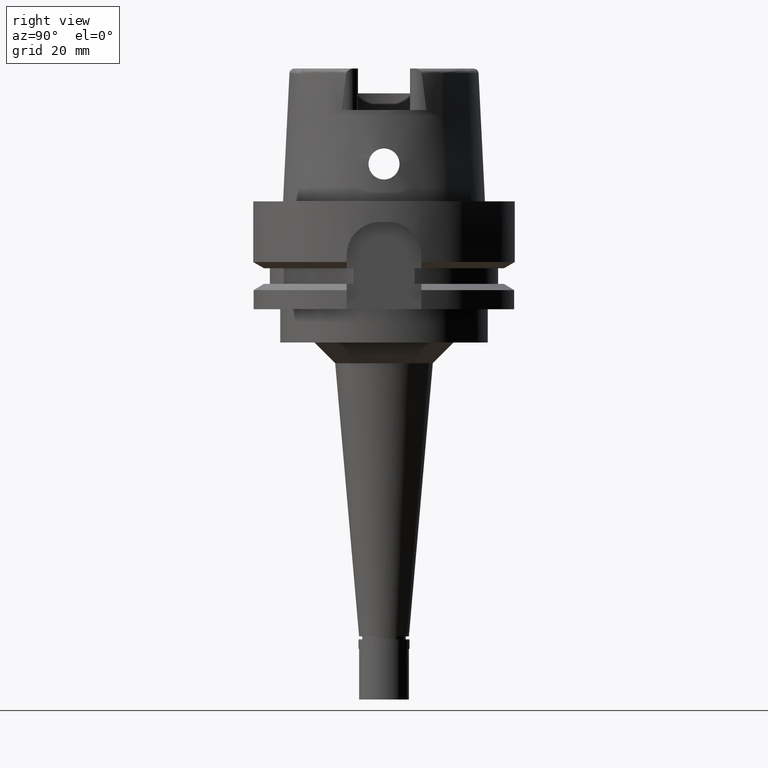
[diagram: clean part render]
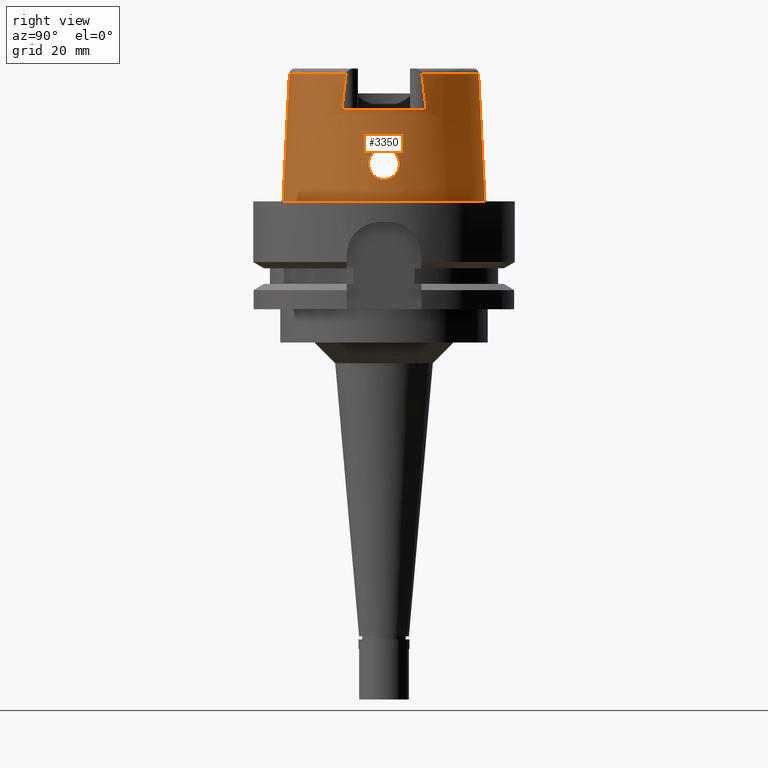
[diagram: same view with one face highlighted and labeled with its STEP entity id]
A machine part, right view. The second image highlights one B-rep face of the part: STEP entity #3350.
In plain terms, the highlighted conical surface has half-angle 2.862 deg.
Its self-contained STEP definition (entity closure, byte-faithful):
#6 = VERTEX_POINT ( 'NONE', #3662 ) ;
#54 = CARTESIAN_POINT ( 'NONE',  ( 23.64567500269144418, 1.498947058962771139, 12.43753603522380047 ) ) ;
#60 = CARTESIAN_POINT ( 'NONE',  ( 0.0000000000000000000, 24.31503482328999866, 1.136868377215999875E-13 ) ) ;
#62 = ORIENTED_EDGE ( 'NONE', *, *, #1748, .F. ) ;
#81 = CARTESIAN_POINT ( 'NONE',  ( 23.67751368057999883, 0.0000000000000000000, 12.75000000000000000 ) ) ;
#88 = VERTEX_POINT ( 'NONE', #1634 ) ;
#112 = CARTESIAN_POINT ( 'NONE',  ( 23.53962612747333338, 3.467840662365440974, 10.42710194387783851 ) ) ;
#119 = CARTESIAN_POINT ( 'NONE',  ( 24.05252611746999847, 0.0000000000000000000, 5.250000000000000000 ) ) ;
#132 = CARTESIAN_POINT ( 'NONE',  ( 0.0000000000000000000, 1.413609354011999823E-14, 1.136868377215999875E-13 ) ) ;
#188 = CARTESIAN_POINT ( 'NONE',  ( 20.87000233117000292, 9.149994763924999219, 30.54552228658999979 ) ) ;
#189 = DIRECTION ( 'NONE',  ( 0.0000000000000000000, 0.0000000000000000000, 1.000000000000000000 ) ) ;
#244 = CARTESIAN_POINT ( 'NONE',  ( 23.75052776344794481, -3.189267839768944235, 7.026897352602421876 ) ) ;
#265 = CARTESIAN_POINT ( 'NONE',  ( 23.54997882773250240, -3.214048249143627078, 10.93583124113238014 ) ) ;
#288 = CARTESIAN_POINT ( 'NONE',  ( 23.94319600311800045, 1.974359340176952804, 5.811551314754698438 ) ) ;
#292 = CARTESIAN_POINT ( 'NONE',  ( 23.54898609649416841, -3.721192827334553144, 9.479207225134395287 ) ) ;
#316 = CARTESIAN_POINT ( 'NONE',  ( 24.01740961600312119, 1.127694088132078276, 5.423037310358941099 ) ) ;
#318 = CARTESIAN_POINT ( 'NONE',  ( 0.0000000000000000000, 1.413609354011999823E-14, 15.42996356139999925 ) ) ;
#319 = EDGE_LOOP ( 'NONE', ( #531, #411 ) ) ;
#320 = CARTESIAN_POINT ( 'NONE',  ( 23.76357125701472484, -3.127457292970898806, 6.930804438420294034 ) ) ;
#338 = CARTESIAN_POINT ( 'NONE',  ( 23.78133957616316962, 3.041198773303932512, 6.805139776505233939 ) ) ;
#342 = CARTESIAN_POINT ( 'NONE',  ( 23.57970016661533563, -3.750167213228773999, 8.779389093526935639 ) ) ;
#359 = CARTESIAN_POINT ( 'NONE',  ( 24.02794456644319254, 0.9491204189224311527, 5.369973197295440315 ) ) ;
#364 = CARTESIAN_POINT ( 'NONE',  ( 23.99508534021521911, -1.438444103697369858, 5.536845054385347353 ) ) ;
#380 = VECTOR ( 'NONE', #3071, 1000.000000000000227 ) ;
#389 = CARTESIAN_POINT ( 'NONE',  ( 23.73891627175171237, 3.241955121112140237, 7.111211800008759631 ) ) ;
#411 = ORIENTED_EDGE ( 'NONE', *, *, #4516, .F. ) ;
#419 = CARTESIAN_POINT ( 'NONE',  ( 23.54158988541649578, 3.389280634928852898, 10.61710425742430353 ) ) ;
#445 = CARTESIAN_POINT ( 'NONE',  ( 20.86974092012000170, 9.111384045666000020, 30.85992712280000205 ) ) ;
#469 = CARTESIAN_POINT ( 'NONE',  ( 23.57804046785176411, 2.745080040117716003, 11.55523828441466883 ) ) ;
#481 = CARTESIAN_POINT ( 'NONE',  ( 0.0000000000000000000, 22.77198729362000051, 30.85992712280000205 ) ) ;
#496 = CARTESIAN_POINT ( 'NONE',  ( 23.56893699744993498, 2.893639315387463551, 11.38616883025181359 ) ) ;
#505 = CARTESIAN_POINT ( 'NONE',  ( 23.64938639538356213, -1.406670857329192614, 12.47618256464621211 ) ) ;
#522 = CARTESIAN_POINT ( 'NONE',  ( 23.64326211258021360, 1.556598319139703257, 12.41181739720735777 ) ) ;
#531 = ORIENTED_EDGE ( 'NONE', *, *, #5413, .F. ) ;
#609 = VERTEX_POINT ( 'NONE', #4720 ) ;
#618 = CARTESIAN_POINT ( 'NONE',  ( 23.61880211723930145, -2.057621583972756962, 12.13508742681746710 ) ) ;
#648 = CARTESIAN_POINT ( 'NONE',  ( 23.55873834156402324, -3.744918974504029663, 9.210443999823528571 ) ) ;
#675 = CARTESIAN_POINT ( 'NONE',  ( 23.77860802482195979, -3.054942586762835699, 6.821691024075148491 ) ) ;
#697 = CARTESIAN_POINT ( 'NONE',  ( 23.98791552650816072, 1.528516871944484379, 5.573757345069733304 ) ) ;
#702 = CARTESIAN_POINT ( 'NONE',  ( 23.83743926725469464, -2.730987464993206881, 6.429811187070401779 ) ) ;
#725 = CARTESIAN_POINT ( 'NONE',  ( 24.04784391727441317, 0.4712504390398025711, 5.271783121157651131 ) ) ;
#729 = CARTESIAN_POINT ( 'NONE',  ( 23.53850413980849510, -3.633745137339567055, 9.958042845446007263 ) ) ;
#736 = EDGE_CURVE ( 'NONE', #1491, #2393, #1343, .T. ) ;
#752 = CARTESIAN_POINT ( 'NONE',  ( 23.80284695264058570, 2.929284114081540658, 6.657865085349610190 ) ) ;
#755 = CARTESIAN_POINT ( 'NONE',  ( 23.56547889440391685, -3.749604970421091643, 9.061990940598704469 ) ) ;
#758 = CARTESIAN_POINT ( 'NONE',  ( 0.0000000000000000000, 1.601838013285000038E-14, 30.85992712280000205 ) ) ;
#798 = CARTESIAN_POINT ( 'NONE',  ( 23.82422928640364646, 2.811416364551748703, 6.515318221004939403 ) ) ;
#823 = CARTESIAN_POINT ( 'NONE',  ( 20.86997558643017925, -9.487356812470046918, 27.83696496336519743 ) ) ;
#826 = CARTESIAN_POINT ( 'NONE',  ( 23.58882186841112727, 2.571336324442899279, 11.73236196386616292 ) ) ;
#858 = ORIENTED_EDGE ( 'NONE', *, *, #1508, .T. ) ;
#878 = CARTESIAN_POINT ( 'NONE',  ( 23.56144695763741481, 3.018197104163452771, 11.22952616860727026 ) ) ;
#907 = CARTESIAN_POINT ( 'NONE',  ( 23.64681670382447720, 1.471097011011014200, 12.44956149159307301 ) ) ;
#938 = CARTESIAN_POINT ( 'NONE',  ( 23.57585223642896821, 2.780598448592503935, 11.51634269324825510 ) ) ;
#941 = VERTEX_POINT ( 'NONE', #481 ) ;
#958 = CARTESIAN_POINT ( 'NONE',  ( 0.0000000000000000000, -22.77198729362000051, 30.85992712280000205 ) ) ;
#975 = CARTESIAN_POINT ( 'NONE',  ( 23.61157229071850594, -2.189777435665937411, 12.04672538925431091 ) ) ;
#1029 = CARTESIAN_POINT ( 'NONE',  ( 23.62276442012662159, -1.983610039961811067, 12.18275253966955596 ) ) ;
#1054 = CARTESIAN_POINT ( 'NONE',  ( 23.66082615674083556, -3.550079782895392722, 7.788868640141958899 ) ) ;
#1079 = CARTESIAN_POINT ( 'NONE',  ( 23.72659428255796499, -3.296582431071233277, 7.211476263746603443 ) ) ;
#1110 = CARTESIAN_POINT ( 'NONE',  ( 23.95873977404055566, -1.834440503101688602, 5.727299206591295544 ) ) ;
#1132 = CARTESIAN_POINT ( 'NONE',  ( 23.85331738854202754, 2.635118638177096795, 6.331909079644085558 ) ) ;
#1135 = CARTESIAN_POINT ( 'NONE',  ( 23.54067277664325175, -3.430147532447221703, 10.51587876541495170 ) ) ;
#1160 = CARTESIAN_POINT ( 'NONE',  ( 23.59495360777070516, -3.730342472884593974, 8.545369195445857713 ) ) ;
#1186 = CARTESIAN_POINT ( 'NONE',  ( 23.85940475644863668, 2.596769276312734132, 6.294483693599585372 ) ) ;
#1232 = CARTESIAN_POINT ( 'NONE',  ( 23.53882844833148980, 3.506273564601664727, 10.33051665703981392 ) ) ;
#1252 = AXIS2_PLACEMENT_3D ( 'NONE', #5370, #3716, #3610 ) ;
#1260 = CARTESIAN_POINT ( 'NONE',  ( 23.63959946750538421, 1.642236859733247067, 12.37230435666469930 ) ) ;
#1291 = CARTESIAN_POINT ( 'NONE',  ( 23.99468419115157403, -1.443395455895592594, 5.538908498786254242 ) ) ;
#1293 = ORIENTED_EDGE ( 'NONE', *, *, #4236, .T. ) ;
#1314 = CARTESIAN_POINT ( 'NONE',  ( 23.53953853704155463, 3.471461167429688022, 10.41828044390232044 ) ) ;
#1316 = ORIENTED_EDGE ( 'NONE', *, *, #4480, .F. ) ;
#1341 = CARTESIAN_POINT ( 'NONE',  ( 20.86999179056999765, -9.150018439712999552, 30.54599490601000156 ) ) ;
#1343 = B_SPLINE_CURVE_WITH_KNOTS ( 'NONE', 3,
 ( #188, #4806, #4835, #1456 ),
 .UNSPECIFIED., .F., .F.,
 ( 4, 4 ),
 ( 0.0000000000000000000, 1.000000000000000000 ),
 .UNSPECIFIED. ) ;
#1345 = CARTESIAN_POINT ( 'NONE',  ( 23.61419391005726709, 2.139960086628981184, 12.08003497088489731 ) ) ;
#1385 = CARTESIAN_POINT ( 'NONE',  ( 23.65232064829133307, -1.330180013352394885, 12.50642348307517260 ) ) ;
#1407 = LINE ( 'NONE', #4819, #380 ) ;
#1412 = ORIENTED_EDGE ( 'NONE', *, *, #1999, .T. ) ;
#1446 = CARTESIAN_POINT ( 'NONE',  ( 23.62502898092622061, -1.939972048284514639, 12.20938082829930593 ) ) ;
#1456 = CARTESIAN_POINT ( 'NONE',  ( 20.87001804948999961, 10.16747560217999968, 22.00000000000000000 ) ) ;
#1491 = VERTEX_POINT ( 'NONE', #5108 ) ;
#1503 = CARTESIAN_POINT ( 'NONE',  ( 23.54012344133046852, -3.448974541125500171, 10.47220733338969545 ) ) ;
#1508 = EDGE_CURVE ( 'NONE', #941, #2219, #4283, .T. ) ;
#1533 = CARTESIAN_POINT ( 'NONE',  ( 23.84794714920954206, -2.668166159328487552, 6.364910256166401048 ) ) ;
#1566 = CARTESIAN_POINT ( 'NONE',  ( 23.67205092358621243, -3.510857335659615774, 7.681566690725877500 ) ) ;
#1584 = CARTESIAN_POINT ( 'NONE',  ( 23.86621599580160336, 2.553077189673945924, 6.252938102292690203 ) ) ;
#1589 = CARTESIAN_POINT ( 'NONE',  ( 23.58491200568952806, -2.635086690999965953, 11.66815573358331548 ) ) ;
#1612 = CARTESIAN_POINT ( 'NONE',  ( 23.96228112161872303, 1.797915263408240483, 5.708537237114127194 ) ) ;
#1634 = CARTESIAN_POINT ( 'NONE',  ( 20.87000000000000099, -10.16755860605000095, 22.00000000000000000 ) ) ;
#1635 = CARTESIAN_POINT ( 'NONE',  ( 23.99739273869986533, 1.409829581754479255, 5.525077883551468005 ) ) ;
#1639 = CARTESIAN_POINT ( 'NONE',  ( 24.03357658270553898, -0.9592389841520838623, 5.338998091824180392 ) ) ;
#1656 = CARTESIAN_POINT ( 'NONE',  ( 20.86974092012000170, 9.111384045666000020, 30.85992712280000205 ) ) ;
#1662 = CARTESIAN_POINT ( 'NONE',  ( 23.93529998020976279, 2.042251471388276673, 5.854880831651548156 ) ) ;
#1689 = CARTESIAN_POINT ( 'NONE',  ( 23.59430979629781433, 2.480454960365903627, 11.81512265888087931 ) ) ;
#1703 = DIRECTION ( 'NONE',  ( 0.0000000000000000000, 0.0000000000000000000, -1.000000000000000000 ) ) ;
#1748 = EDGE_CURVE ( 'NONE', #1491, #2219, #4214, .T. ) ;
#1760 = DIRECTION ( 'NONE',  ( 0.0000000000000000000, 1.000000000000000000, 0.0000000000000000000 ) ) ;
#1775 = CARTESIAN_POINT ( 'NONE',  ( 23.58070390702605579, 2.702047763894739330, 11.60038455670119184 ) ) ;
#1784 = CARTESIAN_POINT ( 'NONE',  ( 23.66467841318198140, -0.9475930603153021048, 12.63054513712642191 ) ) ;
#1839 = CARTESIAN_POINT ( 'NONE',  ( 23.65028171258489920, -1.383733089148291073, 12.48543509278915309 ) ) ;
#1868 = CARTESIAN_POINT ( 'NONE',  ( 23.67506886774229002, -0.4635059972628745029, 12.72935579356663638 ) ) ;
#1897 = CARTESIAN_POINT ( 'NONE',  ( 20.86991377788481827, -9.124261071323545025, 30.75528323660333285 ) ) ;
#1924 = CARTESIAN_POINT ( 'NONE',  ( 23.76041594084211539, -3.142574339907104441, 6.953831946503634676 ) ) ;
#1950 = CARTESIAN_POINT ( 'NONE',  ( 23.84281702241255019, -2.698952614738327593, 6.396465412354200630 ) ) ;
#1975 = ORIENTED_EDGE ( 'NONE', *, *, #4731, .T. ) ;
#1977 = B_SPLINE_CURVE_WITH_KNOTS ( 'NONE', 3,
 ( #4859, #4325, #1868, #2302, #1784, #3502, #3994, #1385, #1839, #505, #2747, #5267, #4379, #3559, #2325, #3587, #1446, #1029, #4772, #618, #4349, #3618, #975, #2693, #2468, #2357, #3198, #5321, #1589, #4103, #2776, #3303, #265, #3640, #3222, #5351, #1135, #1503, #2889, #3748, #4883, #4052, #729, #4914, #292, #5405, #648, #4575, #755, #4991, #342, #1160, #4157, #5380, #3281, #1054, #1566, #3667, #2805, #2036, #5432, #2858, #4967, #1079, #4133, #4467, #244, #4549, #1924, #4496, #320, #675, #2439, #2382, #4075, #702, #1950, #2014, #1533, #3254, #3725, #4942, #1110, #2831, #4522, #2409, #1984, #3697, #1291, #364, #1639, #4621, #5020 ),
 .UNSPECIFIED., .F., .F.,
 ( 4, 2, 2, 1, 1, 1, 2, 2, 2, 2, 1, 1, 2, 2, 2, 1, 1, 2, 2, 2, 2, 1, 1, 1, 2, 2, 2, 2, 1, 2, 2, 2, 2, 1, 1, 1, 2, 2, 2, 2, 1, 1, 2, 2, 2, 1, 1, 2, 2, 2, 2, 1, 1, 1, 2, 2, 4 ),
 ( 0.0000000000000000000, 0.06249999999998782918, 0.09374999999998173683, 0.1093749999999786976, 0.1171874999999771155, 0.1210937499999763661, 0.1230468749999759914, 0.1249999999999756306, 0.1562499999999717448, 0.1718749999999698297, 0.1796874999999688305, 0.1835937499999682476, 0.1855468749999679978, 0.1874999999999677480, 0.2187499999999636124, 0.2343749999999615308, 0.2421874999999606148, 0.2460937499999600042, 0.2499999999999594213, 0.3124999999999497069, 0.3437499999999445999, 0.3593749999999421019, 0.3671874999999408251, 0.3710937499999401590, 0.3730468749999401035, 0.3749999999999400480, 0.4374999999999441558, 0.4687499999999462097, 0.4843749999999469869, 0.4921874999999473754, 0.4999999999999478195, 0.5624999999999500400, 0.5937499999999512612, 0.6093749999999518163, 0.6171874999999519273, 0.6210937499999521494, 0.6230468749999521494, 0.6249999999999522604, 0.6562499999999551470, 0.6718749999999565903, 0.6796874999999571454, 0.6835937499999574785, 0.6855468749999577005, 0.6874999999999578115, 0.7187499999999613642, 0.7343749999999631406, 0.7421874999999639178, 0.7460937499999643618, 0.7499999999999648059, 0.8124999999999727995, 0.8437499999999767963, 0.8593749999999787947, 0.8671874999999797939, 0.8710937499999802380, 0.8730468749999805711, 0.8749999999999807931, 1.000000000000000000 ),
 .UNSPECIFIED. ) ;
#1979 = CARTESIAN_POINT ( 'NONE',  ( 23.58475926818034552, 3.739586881998485879, 8.714567801988287954 ) ) ;
#1984 = CARTESIAN_POINT ( 'NONE',  ( 23.99215754469437201, -1.474293042721945390, 5.551916989840967709 ) ) ;
#1999 = EDGE_CURVE ( 'NONE', #4838, #2231, #1407, .T. ) ;
#2009 = CARTESIAN_POINT ( 'NONE',  ( 23.93769692749249955, 2.021889235637571058, 5.841690253630572371 ) ) ;
#2012 = DIRECTION ( 'NONE',  ( 0.0000000000000000000, 0.0000000000000000000, -1.000000000000000000 ) ) ;
#2014 = CARTESIAN_POINT ( 'NONE',  ( 23.84640381690026700, -2.677459809602177998, 6.374367403151024014 ) ) ;
#2033 = CARTESIAN_POINT ( 'NONE',  ( 23.71853951076468903, 3.330003972275972224, 7.274486449615914729 ) ) ;
#2036 = CARTESIAN_POINT ( 'NONE',  ( 23.68201660246749185, -3.474675047228731106, 7.589609428748552489 ) ) ;
#2083 = CARTESIAN_POINT ( 'NONE',  ( 23.63430453044871626, 3.637379919179562382, 8.055099346711068975 ) ) ;
#2088 = EDGE_LOOP ( 'NONE', ( #5265, #1316, #1293, #1412, #1975, #3127, #858, #62, #4492, #3444 ) ) ;
#2111 = CARTESIAN_POINT ( 'NONE',  ( 23.54807061150006220, 3.727230482244070942, 9.479779608777130662 ) ) ;
#2169 = CARTESIAN_POINT ( 'NONE',  ( 23.60552656861355203, 2.290055493162420408, 11.97017069155452873 ) ) ;
#2172 = CARTESIAN_POINT ( 'NONE',  ( 20.86979783672000011, 9.115619594038999907, 30.82499209921999750 ) ) ;
#2198 = CARTESIAN_POINT ( 'NONE',  ( 23.57934655700481130, 3.745538029908499489, 8.801893585977655476 ) ) ;
#2199 = EDGE_CURVE ( 'NONE', #2393, #88, #2888, .T. ) ;
#2219 = VERTEX_POINT ( 'NONE', #1656 ) ;
#2220 = DIRECTION ( 'NONE',  ( 0.0000000000000000000, -1.000000000000000000, 0.0000000000000000000 ) ) ;
#2231 = VERTEX_POINT ( 'NONE', #3371 ) ;
#2302 = CARTESIAN_POINT ( 'NONE',  ( 23.66773442922912452, -0.8256769610403261739, 12.66003629314438683 ) ) ;
#2325 = CARTESIAN_POINT ( 'NONE',  ( 23.63218509628909914, -1.797564463735738638, 12.29166421970419876 ) ) ;
#2357 = CARTESIAN_POINT ( 'NONE',  ( 23.59333803302244448, -2.501107180875069336, 11.79528128289003597 ) ) ;
#2382 = CARTESIAN_POINT ( 'NONE',  ( 23.81419657591342443, -2.864577524328889346, 6.579153731057598264 ) ) ;
#2393 = VERTEX_POINT ( 'NONE', #4481 ) ;
#2405 = CARTESIAN_POINT ( 'NONE',  ( 23.97834785455524909, 1.635788749924658614, 5.623374343954840704 ) ) ;
#2409 = CARTESIAN_POINT ( 'NONE',  ( 23.98852199915969763, -1.517744536999673377, 5.570679298076049335 ) ) ;
#2434 = CARTESIAN_POINT ( 'NONE',  ( 23.85444574860556699, 2.628058477726505693, 6.324951345391449209 ) ) ;
#2436 = FACE_BOUND ( 'NONE', #319, .T. ) ;
#2439 = CARTESIAN_POINT ( 'NONE',  ( 23.79281225711503467, -2.981624320895005731, 6.722365127590093081 ) ) ;
#2444 = CONICAL_SURFACE ( 'NONE', #2533, 23.54351105844999736, 0.04996004983832824653 ) ;
#2468 = CARTESIAN_POINT ( 'NONE',  ( 23.59754812239040334, -2.431264337205810921, 11.85573877069498039 ) ) ;
#2471 = DIRECTION ( 'NONE',  ( 0.0000000000000000000, 0.0000000000000000000, -1.000000000000000000 ) ) ;
#2486 = CARTESIAN_POINT ( 'NONE',  ( 24.05252611746999847, 0.0000000000000000000, 5.250000000000000000 ) ) ;
#2509 = CARTESIAN_POINT ( 'NONE',  ( 23.69193723040612198, 3.437423092609667830, 7.500795353851186675 ) ) ;
#2512 = CARTESIAN_POINT ( 'NONE',  ( 20.87000233117000292, 9.145647684066000593, 30.58043093311000149 ) ) ;
#2533 = AXIS2_PLACEMENT_3D ( 'NONE', #318, #2012, #3723 ) ;
#2541 = CARTESIAN_POINT ( 'NONE',  ( 23.61122864453791337, 2.191615436201575839, 12.04353246714009451 ) ) ;
#2545 = CIRCLE ( 'NONE', #4762, 22.77198729362000407 ) ;
#2554 = CARTESIAN_POINT ( 'NONE',  ( 0.0000000000000000000, 1.601838013285000038E-14, 30.85992712280000205 ) ) ;
#2585 = B_SPLINE_CURVE_WITH_KNOTS ( 'NONE', 3,
 ( #3967, #1897, #3171, #4830 ),
 .UNSPECIFIED., .F., .F.,
 ( 4, 4 ),
 ( 0.0000000000000000000, 1.000000000000000000 ),
 .UNSPECIFIED. ) ;
#2593 = CARTESIAN_POINT ( 'NONE',  ( 23.53836554886902732, 3.544358998665197547, 10.22755380841134887 ) ) ;
#2693 = CARTESIAN_POINT ( 'NONE',  ( 23.60596514682684699, -2.288686898041976114, 11.97314195725803820 ) ) ;
#2747 = CARTESIAN_POINT ( 'NONE',  ( 23.64878474222427940, -1.421959222574153081, 12.46995678545798292 ) ) ;
#2776 = CARTESIAN_POINT ( 'NONE',  ( 23.57090173521116938, -2.851783719852754029, 11.45073615656282406 ) ) ;
#2805 = CARTESIAN_POINT ( 'NONE',  ( 23.68033565981714261, -3.480855428995757173, 7.604932356572007279 ) ) ;
#2827 = CARTESIAN_POINT ( 'NONE',  ( 23.59634254029921507, 3.723339831588870830, 8.538300044171998948 ) ) ;
#2831 = CARTESIAN_POINT ( 'NONE',  ( 23.97378021875544007, -1.681349987978831839, 5.647557184891430104 ) ) ;
#2855 = CARTESIAN_POINT ( 'NONE',  ( 23.94774869416685803, 1.933610528935810091, 5.786801524527689367 ) ) ;
#2858 = CARTESIAN_POINT ( 'NONE',  ( 23.69435554764423912, -3.428888116544872133, 7.478148823597470241 ) ) ;
#2860 = EDGE_CURVE ( 'NONE', #941, #5045, #4456, .T. ) ;
#2885 = CARTESIAN_POINT ( 'NONE',  ( 24.00427750764207246, 1.320139269984407449, 5.489804380348598301 ) ) ;
#2888 = CIRCLE ( 'NONE', #1252, 23.21499834174999322 ) ;
#2889 = CARTESIAN_POINT ( 'NONE',  ( 23.53991128223317020, -3.456838699349025212, 10.45355135675724512 ) ) ;
#2911 = CARTESIAN_POINT ( 'NONE',  ( 23.85643597552232720, 2.615537823796420192, 6.312707950526506018 ) ) ;
#2932 = CARTESIAN_POINT ( 'NONE',  ( 23.88286951994205154, 2.441805464641747747, 6.153168899056302266 ) ) ;
#2959 = CARTESIAN_POINT ( 'NONE',  ( 23.54618829208430952, 3.289801463430109152, 10.81642868702550508 ) ) ;
#2984 = CARTESIAN_POINT ( 'NONE',  ( 23.58186906006815775, 2.683260495488291042, 11.61967442047050625 ) ) ;
#3034 = CARTESIAN_POINT ( 'NONE',  ( 23.55647545548616861, 3.749915410665048299, 9.238654316073519723 ) ) ;
#3069 = CARTESIAN_POINT ( 'NONE',  ( 23.53920775587365810, 3.486207998745320946, 10.38176969374084635 ) ) ;
#3071 = DIRECTION ( 'NONE',  ( 0.0000000000000000000, -0.04993926899646232431, -0.9987522562738463394 ) ) ;
#3127 = ORIENTED_EDGE ( 'NONE', *, *, #2860, .F. ) ;
#3134 = B_SPLINE_CURVE_WITH_KNOTS ( 'NONE', 3,
 ( #4338, #5204, #823, #1341 ),
 .UNSPECIFIED., .F., .F.,
 ( 4, 4 ),
 ( 0.0000000000000000000, 1.000000000000000000 ),
 .UNSPECIFIED. ) ;
#3145 = AXIS2_PLACEMENT_3D ( 'NONE', #2554, #1703, #1760 ) ;
#3170 = VERTEX_POINT ( 'NONE', #119 ) ;
#3171 = CARTESIAN_POINT ( 'NONE',  ( 20.87000008239927240, -9.137139755817633713, 30.65063907130667076 ) ) ;
#3198 = CARTESIAN_POINT ( 'NONE',  ( 23.58842350208107419, -2.579912083236847842, 11.72180307235550245 ) ) ;
#3222 = CARTESIAN_POINT ( 'NONE',  ( 23.54348884236416239, -3.353182130822916829, 10.67987313907498859 ) ) ;
#3226 = AXIS2_PLACEMENT_3D ( 'NONE', #132, #189, #2220 ) ;
#3254 = CARTESIAN_POINT ( 'NONE',  ( 23.88272742799613368, -2.457320336031306507, 6.153408810898781667 ) ) ;
#3264 = VERTEX_POINT ( 'NONE', #4965 ) ;
#3277 = CARTESIAN_POINT ( 'NONE',  ( 23.99866252537630018, 1.393678842620589942, 5.518562213304427644 ) ) ;
#3281 = CARTESIAN_POINT ( 'NONE',  ( 23.65176224062926025, -3.579631366587428420, 7.880718504141579039 ) ) ;
#3300 = CARTESIAN_POINT ( 'NONE',  ( 23.83838414140756257, 2.728146845235156270, 6.424166094513642733 ) ) ;
#3303 = CARTESIAN_POINT ( 'NONE',  ( 23.56094398487130093, -3.013964123777065129, 11.24470827246083360 ) ) ;
#3325 = CARTESIAN_POINT ( 'NONE',  ( 23.93369308189102540, 2.055823963391288256, 5.863735743428724057 ) ) ;
#3350 = ADVANCED_FACE ( 'NONE', ( #5062, #2436 ), #2444, .T. ) ;
#3351 = CARTESIAN_POINT ( 'NONE',  ( 24.01170318451475083, 1.216782690786436749, 5.451924525100293906 ) ) ;
#3366 = EDGE_CURVE ( 'NONE', #88, #3264, #3134, .T. ) ;
#3371 = CARTESIAN_POINT ( 'NONE',  ( 0.0000000000000000000, -24.31503482328999866, 1.882938249763999678E-13 ) ) ;
#3375 = CARTESIAN_POINT ( 'NONE',  ( 23.70845417286950507, 3.372284648203550450, 7.357724275864540253 ) ) ;
#3396 = B_SPLINE_CURVE_WITH_KNOTS ( 'NONE', 3,
 ( #2486, #4988, #725, #5449, #359, #316, #3351, #2885, #5040, #3277, #1635, #697, #2405, #1612, #4128, #2855, #288, #2009, #1662, #3325, #5015, #4177, #4153, #3721, #2932, #5401, #1584, #1186, #2911, #2434, #1132, #3300, #798, #752, #3743, #338, #4572, #4099, #389, #2033, #3375, #3794, #2509, #4596, #4201, #2083, #5473, #2827, #1979, #2198, #5178, #5066, #3900, #3034, #2111, #4230, #4732, #4254, #2593, #1232, #3069, #5094, #1314, #112, #419, #2959, #4648, #878, #496, #4284, #938, #469, #1775, #2984, #4341, #3815, #826, #1689, #3490, #2169, #2541, #1345, #3461, #4449, #3405, #1260, #522, #54, #907, #3433, #4680, #81 ),
 .UNSPECIFIED., .F., .F.,
 ( 4, 2, 2, 1, 1, 2, 2, 2, 2, 1, 1, 2, 2, 2, 2, 1, 1, 2, 2, 2, 2, 2, 2, 1, 2, 2, 2, 2, 1, 2, 2, 2, 2, 1, 1, 1, 2, 2, 2, 2, 2, 1, 1, 2, 2, 2, 2, 2, 2, 1, 2, 2, 4 ),
 ( 0.0000000000000000000, 0.06249999999999782119, 0.09374999999999671096, 0.1093749999999961281, 0.1171874999999958505, 0.1210937499999957118, 0.1249999999999955730, 0.1562499999999943379, 0.1718749999999936995, 0.1796874999999933387, 0.1835937499999931166, 0.1855468749999930056, 0.1874999999999928946, 0.2187499999999918399, 0.2343749999999912292, 0.2421874999999909794, 0.2460937499999909517, 0.2480468749999910072, 0.2499999999999910905, 0.2812499999999931721, 0.2968749999999943379, 0.3124999999999954481, 0.3437499999999979461, 0.3593749999999991118, 0.3671874999999996114, 0.3750000000000001110, 0.4375000000000038303, 0.4687500000000058842, 0.4843750000000066613, 0.4921875000000068279, 0.5000000000000069944, 0.5625000000000071054, 0.5937500000000073275, 0.6093750000000075495, 0.6171875000000074385, 0.6210937500000072164, 0.6230468750000071054, 0.6250000000000071054, 0.6875000000000079936, 0.7187500000000082157, 0.7343750000000085487, 0.7421875000000087708, 0.7460937500000088818, 0.7480468750000087708, 0.7500000000000086597, 0.7812500000000076605, 0.7968750000000071054, 0.8125000000000065503, 0.8437500000000055511, 0.8593750000000048850, 0.8671875000000046629, 0.8750000000000043299, 1.000000000000000000 ),
 .UNSPECIFIED. ) ;
#3405 = CARTESIAN_POINT ( 'NONE',  ( 23.63580689270655810, 1.725313864314095724, 12.33010288611676408 ) ) ;
#3433 = CARTESIAN_POINT ( 'NONE',  ( 23.66769064801823319, 0.9503136085634158459, 12.66622891644133908 ) ) ;
#3444 = ORIENTED_EDGE ( 'NONE', *, *, #2199, .T. ) ;
#3461 = CARTESIAN_POINT ( 'NONE',  ( 23.62264525781467839, 1.991679677592443687, 12.17960539042527834 ) ) ;
#3490 = CARTESIAN_POINT ( 'NONE',  ( 23.60270229915608908, 2.338374675739210318, 11.93228101903597249 ) ) ;
#3502 = CARTESIAN_POINT ( 'NONE',  ( 23.65917758429711526, -1.131087219318033910, 12.57592146900108787 ) ) ;
#3559 = CARTESIAN_POINT ( 'NONE',  ( 23.63993527070157441, -1.634010356584214785, 12.37752505554601790 ) ) ;
#3587 = CARTESIAN_POINT ( 'NONE',  ( 23.62942729564682764, -1.853712487092561423, 12.26047809560476587 ) ) ;
#3610 = DIRECTION ( 'NONE',  ( 0.8989877876694422065, 0.4379736951247206744, 0.0000000000000000000 ) ) ;
#3618 = CARTESIAN_POINT ( 'NONE',  ( 23.61752541251243542, -2.081096286241673088, 12.11955084416423567 ) ) ;
#3632 = DIRECTION ( 'NONE',  ( 0.0000000000000000000, 0.04993926899645239476, -0.9987522562738468945 ) ) ;
#3640 = CARTESIAN_POINT ( 'NONE',  ( 23.54698568674806580, -3.273587407289687778, 10.83285082596960791 ) ) ;
#3662 = CARTESIAN_POINT ( 'NONE',  ( 23.67751368057999883, 0.0000000000000000000, 12.75000000000000000 ) ) ;
#3667 = CARTESIAN_POINT ( 'NONE',  ( 23.67782585652104288, -3.490038660983053820, 7.627919145079539831 ) ) ;
#3697 = CARTESIAN_POINT ( 'NONE',  ( 23.99367848587091245, -1.455744460759666570, 5.544084363465794141 ) ) ;
#3716 = DIRECTION ( 'NONE',  ( 0.0000000000000000000, 0.0000000000000000000, -1.000000000000000000 ) ) ;
#3721 = CARTESIAN_POINT ( 'NONE',  ( 23.88985893994496479, 2.393000091343444602, 6.112123999779143446 ) ) ;
#3723 = DIRECTION ( 'NONE',  ( 0.0000000000000000000, -1.000000000000000000, 0.0000000000000000000 ) ) ;
#3725 = CARTESIAN_POINT ( 'NONE',  ( 23.91123499011458620, -2.248781384915004011, 5.988928095102840743 ) ) ;
#3743 = CARTESIAN_POINT ( 'NONE',  ( 23.79569449951002369, 2.967401286018209294, 6.706349855108171276 ) ) ;
#3748 = CARTESIAN_POINT ( 'NONE',  ( 23.53977501401775285, -3.462036386750246830, 10.44112782114050297 ) ) ;
#3794 = CARTESIAN_POINT ( 'NONE',  ( 23.69852339887181003, 3.411755303124857974, 7.443266933530408913 ) ) ;
#3815 = CARTESIAN_POINT ( 'NONE',  ( 23.58310471117655993, 2.663353962456596058, 11.63990616257655297 ) ) ;
#3879 = CARTESIAN_POINT ( 'NONE',  ( 20.86997922677999995, 9.137000530165000356, 30.65041109791999574 ) ) ;
#3900 = CARTESIAN_POINT ( 'NONE',  ( 23.56998643349923483, 3.750010307180308367, 8.971667703836574859 ) ) ;
#3967 = CARTESIAN_POINT ( 'NONE',  ( 20.86974110888999689, -9.111383544944001045, 30.85992740190000205 ) ) ;
#3994 = CARTESIAN_POINT ( 'NONE',  ( 23.65619796865115987, -1.222986262314850414, 12.54601445593190689 ) ) ;
#4043 = CARTESIAN_POINT ( 'NONE',  ( 0.0000000000000000000, 22.77198729362000051, 30.85992712280000205 ) ) ;
#4052 = CARTESIAN_POINT ( 'NONE',  ( 23.53728696435345924, -3.562875858138055296, 10.19646225378585314 ) ) ;
#4075 = CARTESIAN_POINT ( 'NONE',  ( 23.82490822790233054, -2.804287901174547848, 6.508991581705362961 ) ) ;
#4099 = CARTESIAN_POINT ( 'NONE',  ( 23.75277555933859475, 3.178606406085137337, 7.006636204019472736 ) ) ;
#4103 = CARTESIAN_POINT ( 'NONE',  ( 23.58429496837672801, -2.644695564323587877, 11.65864313764586413 ) ) ;
#4126 = VECTOR ( 'NONE', #3632, 1000.000000000000000 ) ;
#4128 = CARTESIAN_POINT ( 'NONE',  ( 23.95663967313867460, 1.852157326651308278, 5.738713487151438919 ) ) ;
#4133 = CARTESIAN_POINT ( 'NONE',  ( 23.73367458951156550, -3.265748599639549443, 7.155613434311697496 ) ) ;
#4153 = CARTESIAN_POINT ( 'NONE',  ( 23.90976739522919203, 2.249121262331124971, 5.996824602755379985 ) ) ;
#4157 = CARTESIAN_POINT ( 'NONE',  ( 23.62377843737628780, -3.662485443641977145, 8.185376523494008794 ) ) ;
#4177 = CARTESIAN_POINT ( 'NONE',  ( 23.92162662578603260, 2.156620749251971336, 5.930402746299440864 ) ) ;
#4201 = CARTESIAN_POINT ( 'NONE',  ( 23.65783262413009069, 3.565134025630129155, 7.806599367738640716 ) ) ;
#4214 = B_SPLINE_CURVE_WITH_KNOTS ( 'NONE', 3,
 ( #4260, #2512, #3879, #5096, #2172, #445 ),
 .UNSPECIFIED., .F., .F.,
 ( 4, 1, 1, 4 ),
 ( 0.0000000000000000000, 0.3333333333333000081, 0.6666666666667000474, 1.000000000000000000 ),
 .UNSPECIFIED. ) ;
#4230 = CARTESIAN_POINT ( 'NONE',  ( 23.54087071689250976, 3.656719008763603895, 9.840172587114611957 ) ) ;
#4236 = EDGE_CURVE ( 'NONE', #609, #4838, #2545, .T. ) ;
#4254 = CARTESIAN_POINT ( 'NONE',  ( 23.53847571896728397, 3.573502318662869826, 10.13861438747968791 ) ) ;
#4260 = CARTESIAN_POINT ( 'NONE',  ( 20.87000233117000292, 9.149994763924999219, 30.54552228658999979 ) ) ;
#4283 = CIRCLE ( 'NONE', #3145, 22.77198729362000051 ) ;
#4284 = CARTESIAN_POINT ( 'NONE',  ( 23.57160206217126230, 2.849850921453221719, 11.43837709434121308 ) ) ;
#4325 = CARTESIAN_POINT ( 'NONE',  ( 23.67751368058000949, -0.2269517896145907265, 12.75000000000000355 ) ) ;
#4338 = CARTESIAN_POINT ( 'NONE',  ( 20.87000000000000099, -10.16755860605000095, 22.00000000000000000 ) ) ;
#4341 = CARTESIAN_POINT ( 'NONE',  ( 23.58265109078735478, 2.670658658780229455, 11.63252032930378910 ) ) ;
#4349 = CARTESIAN_POINT ( 'NONE',  ( 23.61799276077335463, -2.072530633000368994, 12.12525143498800873 ) ) ;
#4379 = CARTESIAN_POINT ( 'NONE',  ( 23.64440441695740347, -1.531535134426443623, 12.42451780853868115 ) ) ;
#4449 = CARTESIAN_POINT ( 'NONE',  ( 23.62804850347698959, 1.887951105630804260, 12.24242398103917928 ) ) ;
#4456 = LINE ( 'NONE', #4043, #4126 ) ;
#4467 = CARTESIAN_POINT ( 'NONE',  ( 23.74482218325099225, -3.215438092148927396, 7.070090207939123239 ) ) ;
#4480 = EDGE_CURVE ( 'NONE', #609, #3264, #2585, .T. ) ;
#4481 = CARTESIAN_POINT ( 'NONE',  ( 20.87001804948999961, 10.16747560217999968, 22.00000000000000000 ) ) ;
#4492 = ORIENTED_EDGE ( 'NONE', *, *, #736, .T. ) ;
#4496 = CARTESIAN_POINT ( 'NONE',  ( 23.76242762034714673, -3.132952371479544862, 6.939129644292883370 ) ) ;
#4516 = EDGE_CURVE ( 'NONE', #6, #3170, #1977, .T. ) ;
#4522 = CARTESIAN_POINT ( 'NONE',  ( 23.98090417693325804, -1.605300151661376518, 5.610183489850469662 ) ) ;
#4525 = DIRECTION ( 'NONE',  ( 0.9164655183265837390, -0.4001136759951928745, 0.0000000000000000000 ) ) ;
#4549 = CARTESIAN_POINT ( 'NONE',  ( 23.75741489450044952, -3.156869143780430598, 6.975843452067706174 ) ) ;
#4572 = CARTESIAN_POINT ( 'NONE',  ( 23.77397666111224339, 3.077643147014259561, 6.856580503816621430 ) ) ;
#4575 = CARTESIAN_POINT ( 'NONE',  ( 23.56271560988650648, -3.748154665737657432, 9.121313282998631422 ) ) ;
#4596 = CARTESIAN_POINT ( 'NONE',  ( 23.68884882812829673, 3.449233318071322163, 7.528126115657448381 ) ) ;
#4621 = CARTESIAN_POINT ( 'NONE',  ( 24.05252611747000202, -0.4684035078132764984, 5.249999999999999112 ) ) ;
#4648 = CARTESIAN_POINT ( 'NONE',  ( 23.55712713689768734, 3.092151170775672586, 11.12509478565772625 ) ) ;
#4680 = CARTESIAN_POINT ( 'NONE',  ( 23.67751368058000594, 0.4547684164662343931, 12.75000000000000178 ) ) ;
#4720 = CARTESIAN_POINT ( 'NONE',  ( 20.86974110888999689, -9.111383544944001045, 30.85992740190000205 ) ) ;
#4731 = EDGE_CURVE ( 'NONE', #2231, #5045, #5077, .T. ) ;
#4732 = CARTESIAN_POINT ( 'NONE',  ( 23.53937198058526192, 3.627147759625954482, 9.960075678943603350 ) ) ;
#4762 = AXIS2_PLACEMENT_3D ( 'NONE', #758, #2471, #4525 ) ;
#4772 = CARTESIAN_POINT ( 'NONE',  ( 23.62000797650831174, -2.035308299325798043, 12.14969357534178940 ) ) ;
#4806 = CARTESIAN_POINT ( 'NONE',  ( 20.87000693992524347, 9.487123607258659774, 27.83827043657408851 ) ) ;
#4819 = CARTESIAN_POINT ( 'NONE',  ( 0.0000000000000000000, -22.77198729362000051, 30.85992712280000205 ) ) ;
#4830 = CARTESIAN_POINT ( 'NONE',  ( 20.86999179056999765, -9.150018439712999552, 30.54599490601000156 ) ) ;
#4835 = CARTESIAN_POINT ( 'NONE',  ( 20.87003658568523079, 9.826152025516613264, 24.98976325588102654 ) ) ;
#4838 = VERTEX_POINT ( 'NONE', #958 ) ;
#4859 = CARTESIAN_POINT ( 'NONE',  ( 23.67751368057999883, 0.0000000000000000000, 12.75000000000000000 ) ) ;
#4883 = CARTESIAN_POINT ( 'NONE',  ( 23.53972023814596781, -3.464175720512832068, 10.43598335807230271 ) ) ;
#4914 = CARTESIAN_POINT ( 'NONE',  ( 23.54569497350811957, -3.703843355179986307, 9.599088352834010962 ) ) ;
#4942 = CARTESIAN_POINT ( 'NONE',  ( 23.94765610641830733, -1.937835690140207845, 5.787125777217672962 ) ) ;
#4965 = CARTESIAN_POINT ( 'NONE',  ( 20.86999179056999765, -9.150018439712999552, 30.54599490601000156 ) ) ;
#4967 = CARTESIAN_POINT ( 'NONE',  ( 23.70640762831527226, -3.381792514914311987, 7.374862803937195288 ) ) ;
#4988 = CARTESIAN_POINT ( 'NONE',  ( 24.05252611746999492, 0.2330201715127950546, 5.250000000000001776 ) ) ;
#4991 = CARTESIAN_POINT ( 'NONE',  ( 23.56699854621995271, -3.749977901884676168, 9.030753649004386929 ) ) ;
#5015 = CARTESIAN_POINT ( 'NONE',  ( 23.93272566822634317, 2.063940891451916393, 5.869075099533940687 ) ) ;
#5020 = CARTESIAN_POINT ( 'NONE',  ( 24.05252611746999847, 0.0000000000000000000, 5.250000000000000000 ) ) ;
#5040 = CARTESIAN_POINT ( 'NONE',  ( 24.00093046609603320, 1.364284773460328060, 5.506938758638155740 ) ) ;
#5045 = VERTEX_POINT ( 'NONE', #60 ) ;
#5062 = FACE_OUTER_BOUND ( 'NONE', #2088, .T. ) ;
#5066 = CARTESIAN_POINT ( 'NONE',  ( 23.57139899221657942, 3.749702530275676793, 8.944835184262151628 ) ) ;
#5077 = CIRCLE ( 'NONE', #3226, 24.31503482328999866 ) ;
#5094 = CARTESIAN_POINT ( 'NONE',  ( 23.53940200006551464, 3.477389149722188932, 10.40368328191313907 ) ) ;
#5096 = CARTESIAN_POINT ( 'NONE',  ( 20.86989360820000172, 9.124124431737000052, 30.75511468668000248 ) ) ;
#5108 = CARTESIAN_POINT ( 'NONE',  ( 20.87000233117000292, 9.149994763924999219, 30.54552228658999979 ) ) ;
#5178 = CARTESIAN_POINT ( 'NONE',  ( 23.57450223315508353, 3.748430961794761096, 8.887850336114626160 ) ) ;
#5204 = CARTESIAN_POINT ( 'NONE',  ( 20.86999201453797426, -9.826413490908782578, 24.98830090621297373 ) ) ;
#5265 = ORIENTED_EDGE ( 'NONE', *, *, #3366, .T. ) ;
#5267 = CARTESIAN_POINT ( 'NONE',  ( 23.64841164587552313, -1.431348819352634472, 12.46609019914700234 ) ) ;
#5321 = CARTESIAN_POINT ( 'NONE',  ( 23.58631668310363949, -2.613096413675287000, 11.68969589741592330 ) ) ;
#5351 = CARTESIAN_POINT ( 'NONE',  ( 23.54198863694539767, -3.390553132479098952, 10.60375302900473216 ) ) ;
#5370 = CARTESIAN_POINT ( 'NONE',  ( 0.0000000000000000000, 1.413609354011999823E-14, 22.00000000000000000 ) ) ;
#5380 = CARTESIAN_POINT ( 'NONE',  ( 23.63437749189021275, -3.633518758909420665, 8.063918497584776190 ) ) ;
#5401 = CARTESIAN_POINT ( 'NONE',  ( 23.87185548757546627, 2.515848145221238674, 6.218975292935983390 ) ) ;
#5405 = CARTESIAN_POINT ( 'NONE',  ( 23.55526404860253109, -3.738467586524655051, 9.299940011021048392 ) ) ;
#5413 = EDGE_CURVE ( 'NONE', #3170, #6, #3396, .T. ) ;
#5432 = CARTESIAN_POINT ( 'NONE',  ( 23.68304375630685854, -3.470877148764151876, 7.580297910081119639 ) ) ;
#5449 = CARTESIAN_POINT ( 'NONE',  ( 24.03379731668766794, 0.8295464844937131543, 5.340881643338224016 ) ) ;
#5473 = CARTESIAN_POINT ( 'NONE',  ( 23.60507518806882032, 3.706712774565062318, 8.418624142971756541 ) ) ;